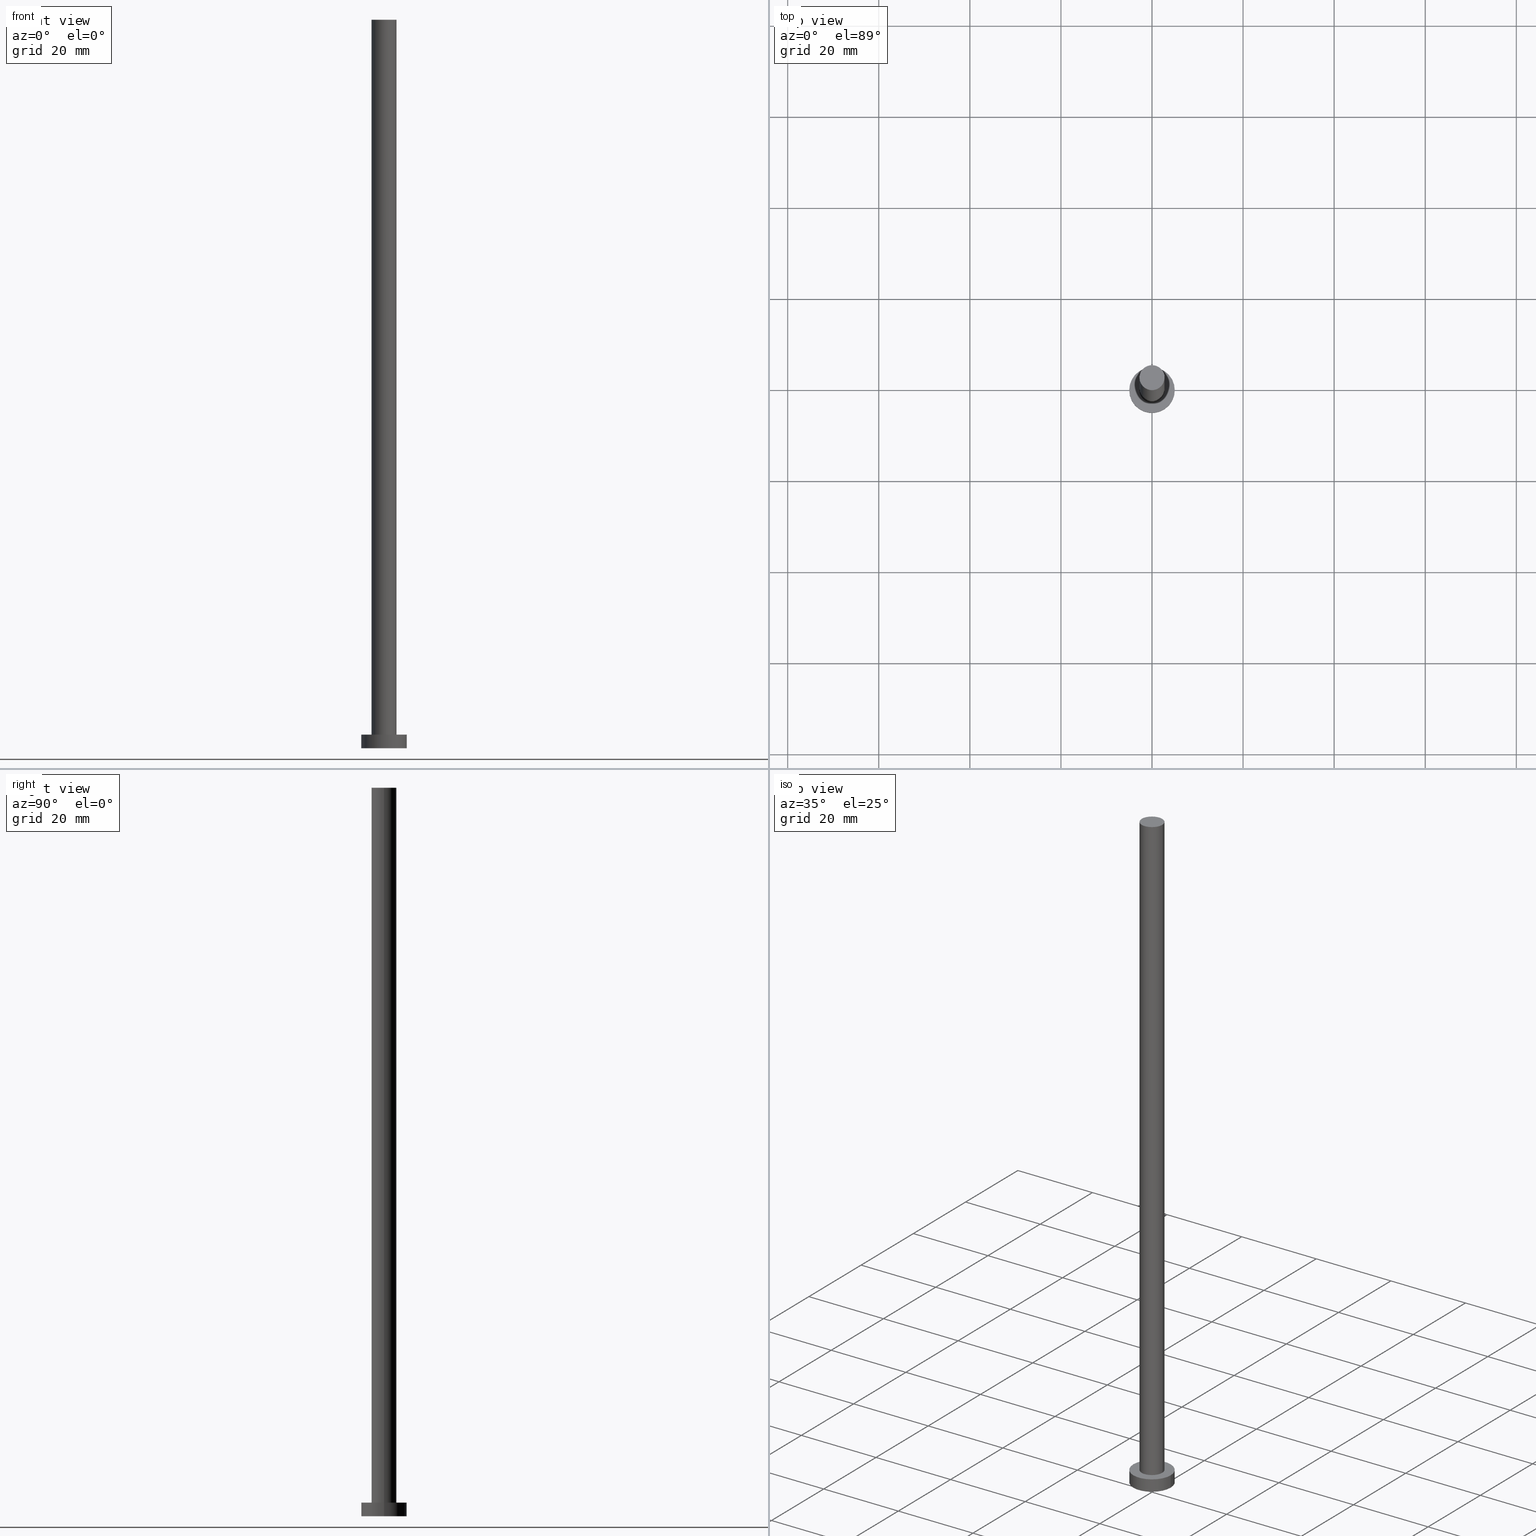
[diagram: canonical four-view strip — front | top / right | iso, engineering-drawing reading convention]
A machine part, canonical four-view strip (front | top / right | iso — engineering-drawing reading convention). The complete STEP part file that produces these views, byte-faithful:
ISO-10303-21;
HEADER;
FILE_DESCRIPTION (( 'STEP AP203' ),
    '1' );
FILE_NAME ('02d6.STEP',
    '2023-02-13T15:47:23',
    ( '' ),
    ( '' ),
    'SwSTEP 2.0',
    'SolidWorks 2019',
    '' );
FILE_SCHEMA (( 'CONFIG_CONTROL_DESIGN' ));
ENDSEC;

DATA;
#1 = SECURITY_CLASSIFICATION_LEVEL ( 'unclassified' ) ;
#2 = LOCAL_TIME ( 16, 47, 23.00000000000000000, #170 ) ;
#3 = CC_DESIGN_PERSON_AND_ORGANIZATION_ASSIGNMENT ( #4, #136, ( #255 ) ) ;
#4 = PERSON_AND_ORGANIZATION ( #104, #36 ) ;
#5 = DIRECTION ( 'NONE',  ( -1.000000000000000000, 0.000000000000000000, 0.000000000000000000 ) ) ;
#6 = APPLICATION_PROTOCOL_DEFINITION ( 'international standard', 'config_control_design', 1994, #190 ) ;
#7 = LINE ( 'NONE', #103, #18 ) ;
#8 = FACE_OUTER_BOUND ( 'NONE', #46, .T. ) ;
#9 = EDGE_LOOP ( 'NONE', ( #193, #232, #101, #28 ) ) ;
#10 = CARTESIAN_POINT ( 'NONE',  ( 0.000000000000000000, 0.000000000000000000, 3.000000000000000000 ) ) ;
#11 = ORIENTED_EDGE ( 'NONE', *, *, #239, .T. ) ;
#12 = AXIS2_PLACEMENT_3D ( 'NONE', #69, #209, #45 ) ;
#13 = CARTESIAN_POINT ( 'NONE',  ( -5.000000000000000000, 0.000000000000000000, 3.000000000000000000 ) ) ;
#14 = EDGE_LOOP ( 'NONE', ( #99, #152 ) ) ;
#15 = ORIENTED_EDGE ( 'NONE', *, *, #202, .T. ) ;
#16 = APPROVAL_ROLE ( '' ) ;
#17 = APPROVAL ( #178, 'NEUR�EN�' ) ;
#18 = VECTOR ( 'NONE', #164, 1000.000000000000000 ) ;
#19 = CALENDAR_DATE ( 2023, 13, 2 ) ;
#20 = CC_DESIGN_PERSON_AND_ORGANIZATION_ASSIGNMENT ( #217, #38, ( #200 ) ) ;
#21 = CIRCLE ( 'NONE', #42, 5.000000000000000000 ) ;
#22 = DIRECTION ( 'NONE',  ( 0.000000000000000000, 0.000000000000000000, 1.000000000000000000 ) ) ;
#23 = CLOSED_SHELL ( 'NONE', ( #60, #156, #198, #73, #76, #24, #234 ) ) ;
#24 = ADVANCED_FACE ( 'NONE', ( #210 ), #166, .T. ) ;
#25 = FACE_OUTER_BOUND ( 'NONE', #9, .T. ) ;
#26 = EDGE_LOOP ( 'NONE', ( #250, #212, #132, #122 ) ) ;
#27 = CARTESIAN_POINT ( 'NONE',  ( 0.000000000000000000, 0.000000000000000000, 3.000000000000000000 ) ) ;
#28 = ORIENTED_EDGE ( 'NONE', *, *, #102, .F. ) ;
#29 = FACE_OUTER_BOUND ( 'NONE', #26, .T. ) ;
#30 = DIRECTION ( 'NONE',  ( 1.000000000000000000, 0.000000000000000000, 0.000000000000000000 ) ) ;
#31 = VERTEX_POINT ( 'NONE', #48 ) ;
#32 = CARTESIAN_POINT ( 'NONE',  ( 0.000000000000000000, 0.000000000000000000, 160.0000000000000000 ) ) ;
#33 = APPROVAL_ROLE ( '' ) ;
#34 = COORDINATED_UNIVERSAL_TIME_OFFSET ( 1, 0, .AHEAD. ) ;
#35 = CIRCLE ( 'NONE', #199, 2.750000000000000000 ) ;
#36 = ORGANIZATION ( 'NEUR�EN�', 'NEUR�EN�', '' ) ;
#37 = PERSON_AND_ORGANIZATION ( #104, #36 ) ;
#38 = PERSON_AND_ORGANIZATION_ROLE ( 'creator' ) ;
#39 = AXIS2_PLACEMENT_3D ( 'NONE', #10, #211, #30 ) ;
#40 = CIRCLE ( 'NONE', #191, 5.000000000000000000 ) ;
#41 = CC_DESIGN_PERSON_AND_ORGANIZATION_ASSIGNMENT ( #111, #197, ( #85 ) ) ;
#42 = AXIS2_PLACEMENT_3D ( 'NONE', #167, #63, #249 ) ;
#43 = DIRECTION ( 'NONE',  ( 0.000000000000000000, 0.000000000000000000, 1.000000000000000000 ) ) ;
#44 = EDGE_CURVE ( 'NONE', #31, #208, #118, .T. ) ;
#45 = DIRECTION ( 'NONE',  ( 1.000000000000000000, 0.000000000000000000, -0.000000000000000000 ) ) ;
#46 = EDGE_LOOP ( 'NONE', ( #71, #11, #15, #171 ) ) ;
#47 = FACE_OUTER_BOUND ( 'NONE', #14, .T. ) ;
#48 = CARTESIAN_POINT ( 'NONE',  ( -2.750000000000000000, 0.000000000000000000, 3.000000000000000000 ) ) ;
#49 = DIRECTION ( 'NONE',  ( 1.000000000000000000, 0.000000000000000000, 0.000000000000000000 ) ) ;
#50 = VERTEX_POINT ( 'NONE', #154 ) ;
#51 = PLANE ( 'NONE',  #12 ) ;
#52 = ORIENTED_EDGE ( 'NONE', *, *, #125, .F. ) ;
#53 = APPLICATION_CONTEXT ( 'configuration controlled 3d designs of mechanical parts and assemblies' ) ;
#54 = VERTEX_POINT ( 'NONE', #236 ) ;
#55 = CARTESIAN_POINT ( 'NONE',  ( 0.000000000000000000, 0.000000000000000000, 0.000000000000000000 ) ) ;
#56 = DATE_TIME_ROLE ( 'creation_date' ) ;
#57 = APPROVAL_DATE_TIME ( #172, #142 ) ;
#58 = EDGE_CURVE ( 'NONE', #130, #195, #252, .T. ) ;
#59 = PRODUCT_DEFINITION_SHAPE ( 'NONE', 'NONE',  #85 ) ;
#60 = ADVANCED_FACE ( 'NONE', ( #8 ), #187, .T. ) ;
#61 = CC_DESIGN_PERSON_AND_ORGANIZATION_ASSIGNMENT ( #87, #240, ( #200 ) ) ;
#62 = DATE_AND_TIME ( #19, #224 ) ;
#63 = DIRECTION ( 'NONE',  ( 0.000000000000000000, 0.000000000000000000, 1.000000000000000000 ) ) ;
#64 = DIRECTION ( 'NONE',  ( 0.000000000000000000, 0.000000000000000000, 1.000000000000000000 ) ) ;
#65 = FACE_BOUND ( 'NONE', #109, .T. ) ;
#66 = DIRECTION ( 'NONE',  ( -1.000000000000000000, 0.000000000000000000, 0.000000000000000000 ) ) ;
#67 = CARTESIAN_POINT ( 'NONE',  ( -5.000000000000000000, 0.000000000000000000, 0.000000000000000000 ) ) ;
#68 = ORIENTED_EDGE ( 'NONE', *, *, #58, .F. ) ;
#69 = CARTESIAN_POINT ( 'NONE',  ( 0.000000000000000000, 0.000000000000000000, 3.000000000000000000 ) ) ;
#70 = ORIENTED_EDGE ( 'NONE', *, *, #44, .T. ) ;
#71 = ORIENTED_EDGE ( 'NONE', *, *, #82, .F. ) ;
#72 = DIRECTION ( 'NONE',  ( 1.000000000000000000, 0.000000000000000000, 0.000000000000000000 ) ) ;
#73 = ADVANCED_FACE ( 'NONE', ( #65, #189 ), #51, .T. ) ;
#74 = APPROVAL_STATUS ( 'not_yet_approved' ) ;
#75 = LOCAL_TIME ( 16, 47, 23.00000000000000000, #139 ) ;
#76 = ADVANCED_FACE ( 'NONE', ( #121 ), #84, .F. ) ;
#77 = CARTESIAN_POINT ( 'NONE',  ( 0.000000000000000000, 0.000000000000000000, 3.000000000000000000 ) ) ;
#78 = MECHANICAL_CONTEXT ( 'NONE', #190, 'mechanical' ) ;
#79 = DIRECTION ( 'NONE',  ( 0.000000000000000000, 0.000000000000000000, 1.000000000000000000 ) ) ;
#80 = ORIENTED_EDGE ( 'NONE', *, *, #90, .T. ) ;
#81 = DIRECTION ( 'NONE',  ( -0.000000000000000000, -0.000000000000000000, -1.000000000000000000 ) ) ;
#82 = EDGE_CURVE ( 'NONE', #54, #206, #112, .T. ) ;
#83 = AXIS2_PLACEMENT_3D ( 'NONE', #188, #246, #66 ) ;
#84 = PLANE ( 'NONE',  #116 ) ;
#85 = PRODUCT_DEFINITION ( 'NEZN�M�', '', #200, #225 ) ;
#86 = DIRECTION ( 'NONE',  ( -1.000000000000000000, 0.000000000000000000, 0.000000000000000000 ) ) ;
#87 = PERSON_AND_ORGANIZATION ( #104, #36 ) ;
#88 = EDGE_LOOP ( 'NONE', ( #145, #80 ) ) ;
#89 = MANIFOLD_SOLID_BREP ( 'P�idat vysunut�m3', #23 ) ;
#90 = EDGE_CURVE ( 'NONE', #50, #151, #158, .T. ) ;
#91 = COORDINATED_UNIVERSAL_TIME_OFFSET ( 1, 0, .AHEAD. ) ;
#92 = APPROVAL_PERSON_ORGANIZATION ( #157, #177, #33 ) ;
#93 = CALENDAR_DATE ( 2023, 13, 2 ) ;
#94 = APPROVAL_ROLE ( '' ) ;
#95 = CYLINDRICAL_SURFACE ( 'NONE', #218, 5.000000000000000000 ) ;
#96 = CARTESIAN_POINT ( 'NONE',  ( 0.000000000000000000, 0.000000000000000000, 0.000000000000000000 ) ) ;
#97 = VECTOR ( 'NONE', #127, 1000.000000000000000 ) ;
#98 = DIRECTION ( 'NONE',  ( 1.000000000000000000, 0.000000000000000000, 0.000000000000000000 ) ) ;
#99 = ORIENTED_EDGE ( 'NONE', *, *, #125, .T. ) ;
#100 = CARTESIAN_POINT ( 'NONE',  ( 0.000000000000000000, 0.000000000000000000, 3.000000000000000000 ) ) ;
#101 = ORIENTED_EDGE ( 'NONE', *, *, #58, .T. ) ;
#102 = EDGE_CURVE ( 'NONE', #151, #195, #108, .T. ) ;
#103 = CARTESIAN_POINT ( 'NONE',  ( 2.750000000000000000, 3.367778697655221012E-16, 160.0000000000000000 ) ) ;
#104 = PERSON ( 'NEUR�EN�', 'NEUR�EN�', 'NEUR�EN�', ('NEUR�EN�'), ('NEUR�EN�'), ('NEUR�EN�') ) ;
#105 = DIRECTION ( 'NONE',  ( -0.000000000000000000, -0.000000000000000000, -1.000000000000000000 ) ) ;
#106 = EDGE_CURVE ( 'NONE', #50, #130, #205, .T. ) ;
#107 = LOCAL_TIME ( 16, 47, 23.00000000000000000, #113 ) ;
#108 = LINE ( 'NONE', #207, #134 ) ;
#109 = EDGE_LOOP ( 'NONE', ( #147, #228 ) ) ;
#110 = CALENDAR_DATE ( 2023, 13, 2 ) ;
#111 = PERSON_AND_ORGANIZATION ( #104, #36 ) ;
#112 = CIRCLE ( 'NONE', #216, 2.750000000000000000 ) ;
#113 = COORDINATED_UNIVERSAL_TIME_OFFSET ( 1, 0, .AHEAD. ) ;
#114 = APPLICATION_PROTOCOL_DEFINITION ( 'international standard', 'config_control_design', 1994, #53 ) ;
#115 = DATE_AND_TIME ( #93, #75 ) ;
#116 = AXIS2_PLACEMENT_3D ( 'NONE', #150, #120, #169 ) ;
#117 =( GEOMETRIC_REPRESENTATION_CONTEXT ( 3 ) GLOBAL_UNCERTAINTY_ASSIGNED_CONTEXT ( ( #201 ) ) GLOBAL_UNIT_ASSIGNED_CONTEXT ( ( #183, #160, #143 ) ) REPRESENTATION_CONTEXT ( 'NONE', 'WORKASPACE' ) );
#118 = CIRCLE ( 'NONE', #233, 2.750000000000000000 ) ;
#119 = CC_DESIGN_APPROVAL ( #17, ( #255 ) ) ;
#120 = DIRECTION ( 'NONE',  ( 0.000000000000000000, 0.000000000000000000, 1.000000000000000000 ) ) ;
#121 = FACE_OUTER_BOUND ( 'NONE', #149, .T. ) ;
#122 = ORIENTED_EDGE ( 'NONE', *, *, #135, .T. ) ;
#123 = VECTOR ( 'NONE', #81, 1000.000000000000000 ) ;
#124 = PLANE ( 'NONE',  #241 ) ;
#125 = EDGE_CURVE ( 'NONE', #206, #54, #35, .T. ) ;
#126 = ORIENTED_EDGE ( 'NONE', *, *, #239, .F. ) ;
#127 = DIRECTION ( 'NONE',  ( -0.000000000000000000, -0.000000000000000000, -1.000000000000000000 ) ) ;
#128 = DIRECTION ( 'NONE',  ( -0.000000000000000000, -0.000000000000000000, -1.000000000000000000 ) ) ;
#129 = DIRECTION ( 'NONE',  ( 0.000000000000000000, 0.000000000000000000, 1.000000000000000000 ) ) ;
#130 = VERTEX_POINT ( 'NONE', #192 ) ;
#131 = LOCAL_TIME ( 16, 47, 23.00000000000000000, #34 ) ;
#132 = ORIENTED_EDGE ( 'NONE', *, *, #102, .T. ) ;
#133 = DIRECTION ( 'NONE',  ( 0.000000000000000000, 0.000000000000000000, 1.000000000000000000 ) ) ;
#134 = VECTOR ( 'NONE', #105, 1000.000000000000000 ) ;
#135 = EDGE_CURVE ( 'NONE', #195, #130, #21, .T. ) ;
#136 = PERSON_AND_ORGANIZATION_ROLE ( 'classification_officer' ) ;
#137 = EDGE_CURVE ( 'NONE', #151, #50, #40, .T. ) ;
#138 = CIRCLE ( 'NONE', #140, 2.750000000000000000 ) ;
#139 = COORDINATED_UNIVERSAL_TIME_OFFSET ( 1, 0, .AHEAD. ) ;
#140 = AXIS2_PLACEMENT_3D ( 'NONE', #77, #163, #243 ) ;
#141 = LINE ( 'NONE', #221, #97 ) ;
#142 = APPROVAL ( #74, 'NEUR�EN�' ) ;
#143 =( NAMED_UNIT ( * ) SI_UNIT ( $, .STERADIAN. ) SOLID_ANGLE_UNIT ( ) );
#144 = CARTESIAN_POINT ( 'NONE',  ( -2.750000000000000000, 0.000000000000000000, 160.0000000000000000 ) ) ;
#145 = ORIENTED_EDGE ( 'NONE', *, *, #137, .T. ) ;
#146 = DIRECTION ( 'NONE',  ( -0.000000000000000000, -0.000000000000000000, -1.000000000000000000 ) ) ;
#147 = ORIENTED_EDGE ( 'NONE', *, *, #44, .F. ) ;
#148 = CARTESIAN_POINT ( 'NONE',  ( 0.000000000000000000, 0.000000000000000000, 3.000000000000000000 ) ) ;
#149 = EDGE_LOOP ( 'NONE', ( #251, #68 ) ) ;
#150 = CARTESIAN_POINT ( 'NONE',  ( 0.000000000000000000, 0.000000000000000000, 0.000000000000000000 ) ) ;
#151 = VERTEX_POINT ( 'NONE', #13 ) ;
#152 = ORIENTED_EDGE ( 'NONE', *, *, #82, .T. ) ;
#153 = CC_DESIGN_SECURITY_CLASSIFICATION ( #255, ( #200 ) ) ;
#154 = CARTESIAN_POINT ( 'NONE',  ( 5.000000000000000000, 6.123233995736766282E-16, 3.000000000000000000 ) ) ;
#155 = APPROVAL_DATE_TIME ( #231, #177 ) ;
#156 = ADVANCED_FACE ( 'NONE', ( #25 ), #95, .T. ) ;
#157 = PERSON_AND_ORGANIZATION ( #104, #36 ) ;
#158 = CIRCLE ( 'NONE', #39, 5.000000000000000000 ) ;
#159 = DATE_TIME_ROLE ( 'classification_date' ) ;
#160 =( NAMED_UNIT ( * ) PLANE_ANGLE_UNIT ( ) SI_UNIT ( $, .RADIAN. ) );
#161 = DIRECTION ( 'NONE',  ( 1.000000000000000000, 0.000000000000000000, 0.000000000000000000 ) ) ;
#162 = ADVANCED_BREP_SHAPE_REPRESENTATION ( '02d6', ( #89, #220 ), #117 ) ;
#163 = DIRECTION ( 'NONE',  ( 0.000000000000000000, 0.000000000000000000, 1.000000000000000000 ) ) ;
#164 = DIRECTION ( 'NONE',  ( -0.000000000000000000, -0.000000000000000000, -1.000000000000000000 ) ) ;
#165 = CARTESIAN_POINT ( 'NONE',  ( 5.000000000000000000, 6.123233995736766282E-16, 3.000000000000000000 ) ) ;
#166 = CYLINDRICAL_SURFACE ( 'NONE', #83, 2.750000000000000000 ) ;
#167 = CARTESIAN_POINT ( 'NONE',  ( 0.000000000000000000, 0.000000000000000000, 0.000000000000000000 ) ) ;
#168 = CARTESIAN_POINT ( 'NONE',  ( 0.000000000000000000, 0.000000000000000000, 160.0000000000000000 ) ) ;
#169 = DIRECTION ( 'NONE',  ( 1.000000000000000000, 0.000000000000000000, -0.000000000000000000 ) ) ;
#170 = COORDINATED_UNIVERSAL_TIME_OFFSET ( 1, 0, .AHEAD. ) ;
#171 = ORIENTED_EDGE ( 'NONE', *, *, #181, .F. ) ;
#172 = DATE_AND_TIME ( #253, #131 ) ;
#173 = CALENDAR_DATE ( 2023, 13, 2 ) ;
#174 = SHAPE_DEFINITION_REPRESENTATION ( #59, #162 ) ;
#175 = AXIS2_PLACEMENT_3D ( 'NONE', #148, #146, #5 ) ;
#176 = PRODUCT ( '02d6', '02d6', '', ( #78 ) ) ;
#177 = APPROVAL ( #213, 'NEUR�EN�' ) ;
#178 = APPROVAL_STATUS ( 'not_yet_approved' ) ;
#179 = AXIS2_PLACEMENT_3D ( 'NONE', #230, #128, #222 ) ;
#180 = APPROVAL_PERSON_ORGANIZATION ( #203, #17, #94 ) ;
#181 = EDGE_CURVE ( 'NONE', #206, #31, #141, .T. ) ;
#182 = CC_DESIGN_PERSON_AND_ORGANIZATION_ASSIGNMENT ( #37, #235, ( #176 ) ) ;
#183 =( LENGTH_UNIT ( ) NAMED_UNIT ( * ) SI_UNIT ( .MILLI., .METRE. ) );
#184 = CYLINDRICAL_SURFACE ( 'NONE', #175, 5.000000000000000000 ) ;
#185 = DIRECTION ( 'NONE',  ( 1.000000000000000000, 0.000000000000000000, 0.000000000000000000 ) ) ;
#186 = ORIENTED_EDGE ( 'NONE', *, *, #181, .T. ) ;
#187 = CYLINDRICAL_SURFACE ( 'NONE', #179, 2.750000000000000000 ) ;
#188 = CARTESIAN_POINT ( 'NONE',  ( 0.000000000000000000, 0.000000000000000000, 160.0000000000000000 ) ) ;
#189 = FACE_OUTER_BOUND ( 'NONE', #88, .T. ) ;
#190 = APPLICATION_CONTEXT ( 'configuration controlled 3d designs of mechanical parts and assemblies' ) ;
#191 = AXIS2_PLACEMENT_3D ( 'NONE', #100, #43, #98 ) ;
#192 = CARTESIAN_POINT ( 'NONE',  ( 5.000000000000000000, 6.123233995736766282E-16, 0.000000000000000000 ) ) ;
#193 = ORIENTED_EDGE ( 'NONE', *, *, #90, .F. ) ;
#194 = CC_DESIGN_DATE_AND_TIME_ASSIGNMENT ( #196, #56, ( #85 ) ) ;
#195 = VERTEX_POINT ( 'NONE', #67 ) ;
#196 = DATE_AND_TIME ( #173, #2 ) ;
#197 = PERSON_AND_ORGANIZATION_ROLE ( 'creator' ) ;
#198 = ADVANCED_FACE ( 'NONE', ( #29 ), #184, .T. ) ;
#199 = AXIS2_PLACEMENT_3D ( 'NONE', #168, #79, #245 ) ;
#200 = PRODUCT_DEFINITION_FORMATION_WITH_SPECIFIED_SOURCE ( 'LIBOVOLN�', '', #176, .NOT_KNOWN. ) ;
#201 = UNCERTAINTY_MEASURE_WITH_UNIT (LENGTH_MEASURE( 1.000000000000000082E-05 ), #183, 'distance_accuracy_value', 'NONE');
#202 = EDGE_CURVE ( 'NONE', #208, #31, #138, .T. ) ;
#203 = PERSON_AND_ORGANIZATION ( #104, #36 ) ;
#204 = CARTESIAN_POINT ( 'NONE',  ( 0.000000000000000000, 0.000000000000000000, 160.0000000000000000 ) ) ;
#205 = LINE ( 'NONE', #165, #123 ) ;
#206 = VERTEX_POINT ( 'NONE', #144 ) ;
#207 = CARTESIAN_POINT ( 'NONE',  ( -5.000000000000000000, 0.000000000000000000, 3.000000000000000000 ) ) ;
#208 = VERTEX_POINT ( 'NONE', #223 ) ;
#209 = DIRECTION ( 'NONE',  ( 0.000000000000000000, 0.000000000000000000, 1.000000000000000000 ) ) ;
#210 = FACE_OUTER_BOUND ( 'NONE', #248, .T. ) ;
#211 = DIRECTION ( 'NONE',  ( 0.000000000000000000, 0.000000000000000000, 1.000000000000000000 ) ) ;
#212 = ORIENTED_EDGE ( 'NONE', *, *, #137, .F. ) ;
#213 = APPROVAL_STATUS ( 'not_yet_approved' ) ;
#214 = CARTESIAN_POINT ( 'NONE',  ( 0.000000000000000000, 0.000000000000000000, 3.000000000000000000 ) ) ;
#215 = PERSON_AND_ORGANIZATION ( #104, #36 ) ;
#216 = AXIS2_PLACEMENT_3D ( 'NONE', #204, #64, #49 ) ;
#217 = PERSON_AND_ORGANIZATION ( #104, #36 ) ;
#218 = AXIS2_PLACEMENT_3D ( 'NONE', #27, #247, #86 ) ;
#219 = CC_DESIGN_APPROVAL ( #177, ( #85 ) ) ;
#220 = AXIS2_PLACEMENT_3D ( 'NONE', #96, #129, #161 ) ;
#221 = CARTESIAN_POINT ( 'NONE',  ( -2.750000000000000000, 0.000000000000000000, 160.0000000000000000 ) ) ;
#222 = DIRECTION ( 'NONE',  ( -1.000000000000000000, 0.000000000000000000, 0.000000000000000000 ) ) ;
#223 = CARTESIAN_POINT ( 'NONE',  ( 2.750000000000000000, 3.367778697655221012E-16, 3.000000000000000000 ) ) ;
#224 = LOCAL_TIME ( 16, 47, 23.00000000000000000, #91 ) ;
#225 = DESIGN_CONTEXT ( 'detailed design', #53, 'design' ) ;
#226 = DIRECTION ( 'NONE',  ( 1.000000000000000000, 0.000000000000000000, -0.000000000000000000 ) ) ;
#227 = DIRECTION ( 'NONE',  ( 0.000000000000000000, 0.000000000000000000, 1.000000000000000000 ) ) ;
#228 = ORIENTED_EDGE ( 'NONE', *, *, #202, .F. ) ;
#229 = PRODUCT_RELATED_PRODUCT_CATEGORY ( 'detail', '', ( #176 ) ) ;
#230 = CARTESIAN_POINT ( 'NONE',  ( 0.000000000000000000, 0.000000000000000000, 160.0000000000000000 ) ) ;
#231 = DATE_AND_TIME ( #110, #107 ) ;
#232 = ORIENTED_EDGE ( 'NONE', *, *, #106, .T. ) ;
#233 = AXIS2_PLACEMENT_3D ( 'NONE', #214, #133, #72 ) ;
#234 = ADVANCED_FACE ( 'NONE', ( #47 ), #124, .T. ) ;
#235 = PERSON_AND_ORGANIZATION_ROLE ( 'design_owner' ) ;
#236 = CARTESIAN_POINT ( 'NONE',  ( 2.750000000000000000, 3.367778697655221012E-16, 160.0000000000000000 ) ) ;
#237 = APPROVAL_PERSON_ORGANIZATION ( #215, #142, #16 ) ;
#238 = APPROVAL_DATE_TIME ( #62, #17 ) ;
#239 = EDGE_CURVE ( 'NONE', #54, #208, #7, .T. ) ;
#240 = PERSON_AND_ORGANIZATION_ROLE ( 'design_supplier' ) ;
#241 = AXIS2_PLACEMENT_3D ( 'NONE', #32, #22, #226 ) ;
#242 = CC_DESIGN_APPROVAL ( #142, ( #200 ) ) ;
#243 = DIRECTION ( 'NONE',  ( 1.000000000000000000, 0.000000000000000000, 0.000000000000000000 ) ) ;
#244 = CC_DESIGN_DATE_AND_TIME_ASSIGNMENT ( #115, #159, ( #255 ) ) ;
#245 = DIRECTION ( 'NONE',  ( 1.000000000000000000, 0.000000000000000000, 0.000000000000000000 ) ) ;
#246 = DIRECTION ( 'NONE',  ( -0.000000000000000000, -0.000000000000000000, -1.000000000000000000 ) ) ;
#247 = DIRECTION ( 'NONE',  ( -0.000000000000000000, -0.000000000000000000, -1.000000000000000000 ) ) ;
#248 = EDGE_LOOP ( 'NONE', ( #126, #52, #186, #70 ) ) ;
#249 = DIRECTION ( 'NONE',  ( 1.000000000000000000, 0.000000000000000000, 0.000000000000000000 ) ) ;
#250 = ORIENTED_EDGE ( 'NONE', *, *, #106, .F. ) ;
#251 = ORIENTED_EDGE ( 'NONE', *, *, #135, .F. ) ;
#252 = CIRCLE ( 'NONE', #254, 5.000000000000000000 ) ;
#253 = CALENDAR_DATE ( 2023, 13, 2 ) ;
#254 = AXIS2_PLACEMENT_3D ( 'NONE', #55, #227, #185 ) ;
#255 = SECURITY_CLASSIFICATION ( '', '', #1 ) ;
ENDSEC;
END-ISO-10303-21;
